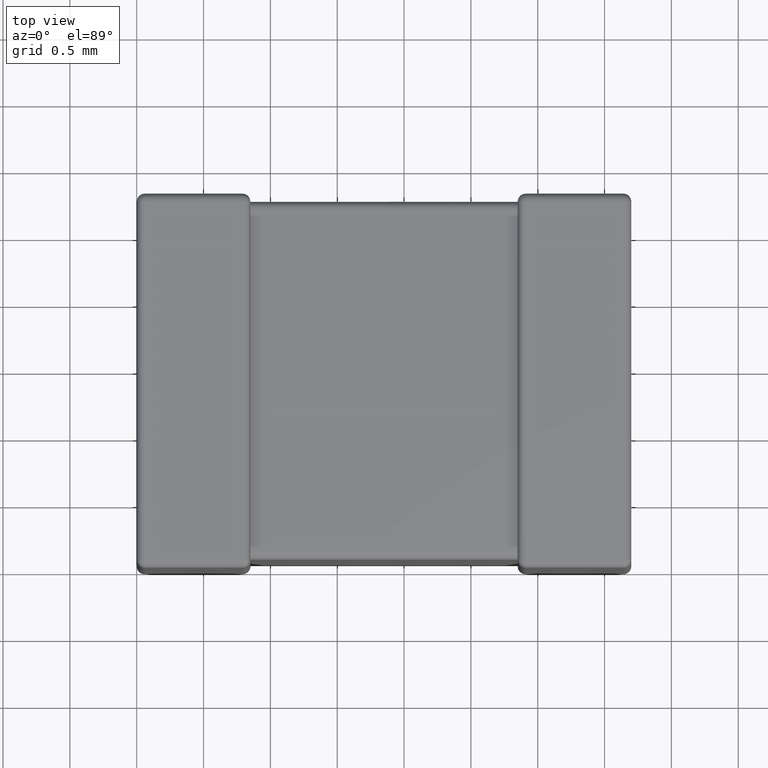
[diagram: clean part render]
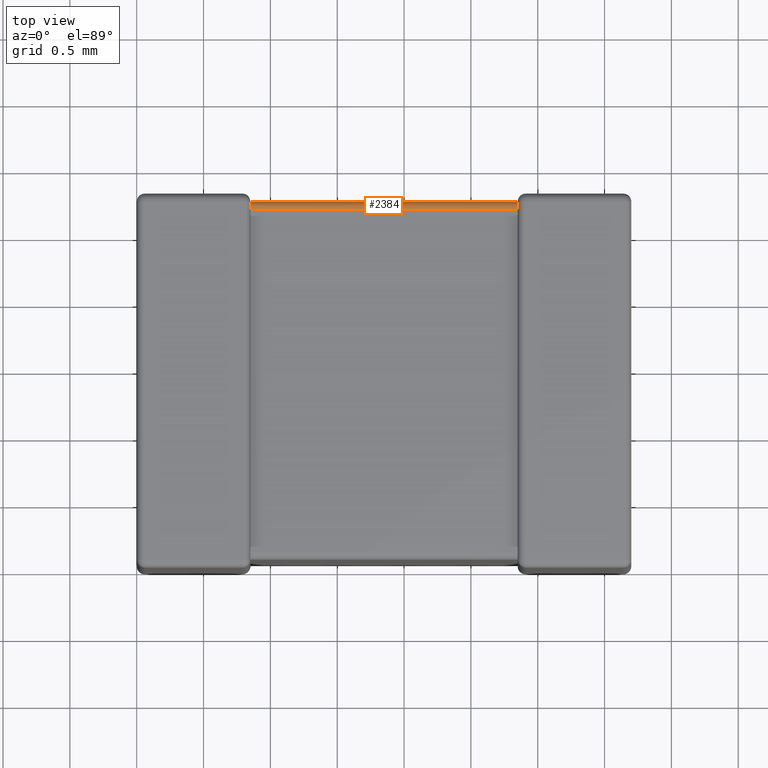
[diagram: same view with one face highlighted and labeled with its STEP entity id]
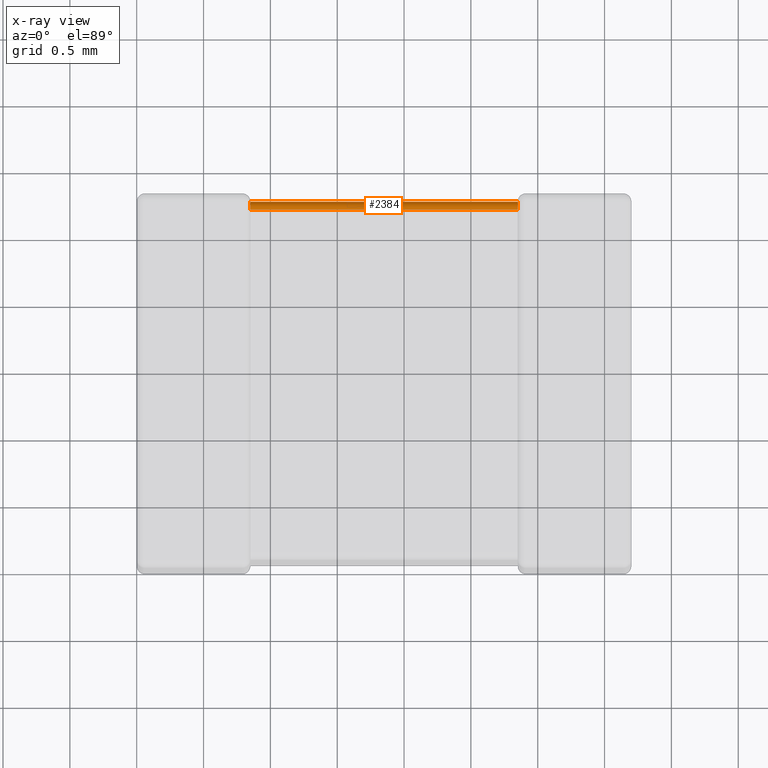
[diagram: x-ray of the same camera — body ghosted, the highlighted face saturated]
A machine part, top view. The second image highlights one B-rep face of the part: STEP entity #2384.
The next image is the same camera in x-ray: the body ghosted, the highlighted face saturated — about 0% of this face is hidden behind the body in this view.
In plain terms, the highlighted cylindrical surface (edge-blend (fillet) strip) has radius 0.0603 mm, axis along (-1, 0, 0).
Its self-contained STEP definition (entity closure, byte-faithful):
#31 = CARTESIAN_POINT ( 'NONE',  ( 0.8500014915948037597, 2.739432080224852850, -0.1143347339007950991 ) ) ;
#42 = CARTESIAN_POINT ( 'NONE',  ( 0.8500000000000000888, 2.679359999999999964, -0.06031999999999999168 ) ) ;
#68 = CARTESIAN_POINT ( 'NONE',  ( 0.8499999999999999778, 2.739679999999999893, -0.1206399999999999834 ) ) ;
#138 = CARTESIAN_POINT ( 'NONE',  ( 2.849999999999999645, 2.679359999999999964, -0.06031999999999999168 ) ) ;
#183 = CARTESIAN_POINT ( 'NONE',  ( 2.850092537798195824, 2.736340060370261451, -0.1008466900140133488 ) ) ;
#219 = VERTEX_POINT ( 'NONE', #4456 ) ;
#245 = B_SPLINE_CURVE_WITH_KNOTS ( 'NONE', 3,
 ( #4131, #1611, #480, #1914, #4458, #3046, #1219, #2637, #2280, #4510 ),
 .UNSPECIFIED., .F., .F.,
 ( 4, 3, 3, 4 ),
 ( 0.000000000000000000, 2.007333754452009811E-05, 4.018812802268484905E-05, 4.726196897772553835E-05 ),
 .UNSPECIFIED. ) ;
#325 = EDGE_LOOP ( 'NONE', ( #703, #3017, #3751, #4155, #2013, #3794 ) ) ;
#480 = CARTESIAN_POINT ( 'NONE',  ( 0.8500292006010126133, 2.692833732949284631, -0.06146469191580231778 ) ) ;
#485 = CARTESIAN_POINT ( 'NONE',  ( 2.849999999999999645, 2.739679999999999893, -0.1206399999999999834 ) ) ;
#491 = CARTESIAN_POINT ( 'NONE',  ( 2.849999999999999645, 2.739679999999999893, -0.1206399999999999834 ) ) ;
#518 = CARTESIAN_POINT ( 'NONE',  ( 2.850676003751899668, 2.712397194144273715, -0.06977744718170159066 ) ) ;
#566 = CARTESIAN_POINT ( 'NONE',  ( 2.849999999999999645, 2.739679999999999893, -0.1139488874851640327 ) ) ;
#703 = ORIENTED_EDGE ( 'NONE', *, *, #3631, .F. ) ;
#756 = CARTESIAN_POINT ( 'NONE',  ( 0.8499834057221581363, 2.737956393001885314, -0.1049956869019970790 ) ) ;
#855 = DIRECTION ( 'NONE',  ( -1.000000000000000000, 0.000000000000000000, -0.000000000000000000 ) ) ;
#933 = CARTESIAN_POINT ( 'NONE',  ( 2.852139638876261873, 2.723663482224630172, -0.07963812014200406797 ) ) ;
#1082 = CARTESIAN_POINT ( 'NONE',  ( 0.8499999999999999778, 2.739679999999999893, -0.1206399999999999834 ) ) ;
#1117 = EDGE_CURVE ( 'NONE', #1140, #3993, #2537, .T. ) ;
#1140 = VERTEX_POINT ( 'NONE', #1229 ) ;
#1141 = CARTESIAN_POINT ( 'NONE',  ( 0.8496394255884716085, 2.733094433729698292, -0.09323355857195797514 ) ) ;
#1190 = CARTESIAN_POINT ( 'NONE',  ( 2.849999999999999645, 2.679359999999999964, -0.06031999999999999168 ) ) ;
#1202 = LINE ( 'NONE', #485, #2980 ) ;
#1206 = CARTESIAN_POINT ( 'NONE',  ( 2.850214406735153361, 2.734142458734350356, -0.09452033661618955418 ) ) ;
#1219 = CARTESIAN_POINT ( 'NONE',  ( 0.8485877111295117015, 2.716737467000159612, -0.07329628488751675774 ) ) ;
#1229 = CARTESIAN_POINT ( 'NONE',  ( 2.849999999999999645, 2.739679999999999893, -0.1206399999999999834 ) ) ;
#1252 = CARTESIAN_POINT ( 'NONE',  ( 2.850506385401005982, 2.730816194173637079, -0.08847155471007216165 ) ) ;
#1278 = CARTESIAN_POINT ( 'NONE',  ( 2.851412288870488254, 2.726703715112483106, -0.08326253299984030798 ) ) ;
#1338 = EDGE_CURVE ( 'NONE', #2216, #1140, #1202, .T. ) ;
#1430 = CARTESIAN_POINT ( 'NONE',  ( 0.8499537780176533719, 2.735956509717161644, -0.09884508726609800289 ) ) ;
#1581 = CARTESIAN_POINT ( 'NONE',  ( 2.850016594277841708, 2.695004313098003035, -0.06204360699811516111 ) ) ;
#1611 = CARTESIAN_POINT ( 'NONE',  ( 0.8500000000000000888, 2.686051112514836081, -0.06031999999999999168 ) ) ;
#1791 = CARTESIAN_POINT ( 'NONE',  ( 0.8473546759055224920, 2.722012681041172666, -0.07798731895882737852 ) ) ;
#1853 = CARTESIAN_POINT ( 'NONE',  ( 2.850004529734188274, 2.688774514713004660, -0.06105922027433158261 ) ) ;
#1875 = CARTESIAN_POINT ( 'NONE',  ( 2.849998508405195974, 2.685665266099205084, -0.06056791977514739550 ) ) ;
#1914 = CARTESIAN_POINT ( 'NONE',  ( 0.8499074622018036873, 2.699153309985986571, -0.06365993962973853781 ) ) ;
#1922 = DIRECTION ( 'NONE',  ( 1.000000000000000000, 0.000000000000000000, -0.000000000000000000 ) ) ;
#1930 = CARTESIAN_POINT ( 'NONE',  ( 2.849970799398986898, 2.738535308084197872, -0.1071662670507152748 ) ) ;
#2013 = ORIENTED_EDGE ( 'NONE', *, *, #1338, .F. ) ;
#2034 = CARTESIAN_POINT ( 'NONE',  ( 0.8500000000000000888, 2.679359999999999964, -0.06031999999999999168 ) ) ;
#2216 = VERTEX_POINT ( 'NONE', #1082 ) ;
#2280 = CARTESIAN_POINT ( 'NONE',  ( 0.8478603611237373050, 2.720361879857996268, -0.07633651777536965000 ) ) ;
#2295 = CARTESIAN_POINT ( 'NONE',  ( 2.851735349689731969, 2.725237134070046974, -0.08140490591499352502 ) ) ;
#2384 = ADVANCED_FACE ( 'NONE', ( #3189 ), #3170, .T. ) ;
#2386 = VERTEX_POINT ( 'NONE', #2034 ) ;
#2468 = CARTESIAN_POINT ( 'NONE',  ( 0.8486944430588806432, 2.726386329161686994, -0.08236096707934172090 ) ) ;
#2537 = B_SPLINE_CURVE_WITH_KNOTS ( 'NONE', 3,
 ( #491, #566, #1930, #183, #1206, #1252, #1278, #2295, #933, #3366 ),
 .UNSPECIFIED., .F., .F.,
 ( 4, 3, 3, 4 ),
 ( 0.000000000000000000, 2.007333754452009472E-05, 4.018812802268501168E-05, 4.726196897772585683E-05 ),
 .UNSPECIFIED. ) ;
#2614 = LINE ( 'NONE', #42, #3108 ) ;
#2625 = CARTESIAN_POINT ( 'NONE',  ( 2.850360574411527903, 2.706766441428042125, -0.06690556627030211367 ) ) ;
#2637 = CARTESIAN_POINT ( 'NONE',  ( 0.8482646503102677649, 2.718595094085006547, -0.07476286592995283475 ) ) ;
#2935 = CARTESIAN_POINT ( 'NONE',  ( 2.850046221982346140, 2.701154912733902069, -0.06404349028283841394 ) ) ;
#2980 = VECTOR ( 'NONE', #1922, 1000.000000000000000 ) ;
#3017 = ORIENTED_EDGE ( 'NONE', *, *, #3515, .F. ) ;
#3046 = CARTESIAN_POINT ( 'NONE',  ( 0.8494936145989937515, 2.711528445289927980, -0.06918380582636321496 ) ) ;
#3108 = VECTOR ( 'NONE', #855, 1000.000000000000000 ) ;
#3170 = CYLINDRICAL_SURFACE ( 'NONE', #4279, 0.06031999999999999862 ) ;
#3182 = EDGE_CURVE ( 'NONE', #3993, #4343, #3785, .T. ) ;
#3189 = FACE_OUTER_BOUND ( 'NONE', #325, .T. ) ;
#3366 = CARTESIAN_POINT ( 'NONE',  ( 2.852645324094476909, 2.722012681041172666, -0.07798731895882743403 ) ) ;
#3515 = EDGE_CURVE ( 'NONE', #4343, #2386, #2614, .T. ) ;
#3550 = DIRECTION ( 'NONE',  ( -1.000000000000000000, 0.000000000000000000, 0.000000000000000000 ) ) ;
#3569 = CARTESIAN_POINT ( 'NONE',  ( 0.8499954702658116812, 2.738940779725668406, -0.1112254852869956068 ) ) ;
#3631 = EDGE_CURVE ( 'NONE', #2386, #219, #245, .T. ) ;
#3735 = CARTESIAN_POINT ( 'NONE',  ( 2.849999999999903277, 2.682507830900687562, -0.06031999999999463485 ) ) ;
#3751 = ORIENTED_EDGE ( 'NONE', *, *, #3182, .F. ) ;
#3785 = B_SPLINE_CURVE_WITH_KNOTS ( 'NONE', 3,
 ( #4377, #4095, #518, #2625, #2935, #1581, #1853, #1875, #3735, #1190 ),
 .UNSPECIFIED., .F., .F.,
 ( 4, 3, 3, 4 ),
 ( 0.000000000000000000, 1.898613036151297387E-05, 3.787211996365401362E-05, 4.720870273682603222E-05 ),
 .UNSPECIFIED. ) ;
#3794 = ORIENTED_EDGE ( 'NONE', *, *, #3808, .F. ) ;
#3808 = EDGE_CURVE ( 'NONE', #219, #2216, #4471, .T. ) ;
#3837 = CARTESIAN_POINT ( 'NONE',  ( 2.852645324094476909, 2.722012681041172666, -0.07798731895882743403 ) ) ;
#3929 = DIRECTION ( 'NONE',  ( 0.000000000000000000, 0.000000000000000000, 1.000000000000000000 ) ) ;
#3993 = VERTEX_POINT ( 'NONE', #3837 ) ;
#4022 = CARTESIAN_POINT ( 'NONE',  ( 0.8500000000000961231, 2.739680000000005666, -0.1174921690993126211 ) ) ;
#4095 = CARTESIAN_POINT ( 'NONE',  ( 2.851305556941118979, 2.717639032920658337, -0.07361367083831323044 ) ) ;
#4131 = CARTESIAN_POINT ( 'NONE',  ( 0.8500000000000000888, 2.679359999999999964, -0.06031999999999999168 ) ) ;
#4155 = ORIENTED_EDGE ( 'NONE', *, *, #1117, .F. ) ;
#4279 = AXIS2_PLACEMENT_3D ( 'NONE', #4648, #3550, #3929 ) ;
#4343 = VERTEX_POINT ( 'NONE', #138 ) ;
#4377 = CARTESIAN_POINT ( 'NONE',  ( 2.852645324094476909, 2.722012681041172666, -0.07798731895882743403 ) ) ;
#4381 = CARTESIAN_POINT ( 'NONE',  ( 0.8493239962480998440, 2.730222552818298620, -0.08760280585572662038 ) ) ;
#4456 = CARTESIAN_POINT ( 'NONE',  ( 0.8473546759055224920, 2.722012681041172666, -0.07798731895882737852 ) ) ;
#4458 = CARTESIAN_POINT ( 'NONE',  ( 0.8497855932648465949, 2.705479663383810518, -0.06585754126565010469 ) ) ;
#4471 = B_SPLINE_CURVE_WITH_KNOTS ( 'NONE', 3,
 ( #1791, #2468, #4381, #1141, #1430, #756, #3569, #31, #4022, #68 ),
 .UNSPECIFIED., .F., .F.,
 ( 4, 3, 3, 4 ),
 ( 0.000000000000000000, 1.898613036151324831E-05, 3.787211996365370868E-05, 4.720870273682615419E-05 ),
 .UNSPECIFIED. ) ;
#4510 = CARTESIAN_POINT ( 'NONE',  ( 0.8473546759055224920, 2.722012681041172666, -0.07798731895882737852 ) ) ;
#4648 = CARTESIAN_POINT ( 'NONE',  ( 0.8499999999999999778, 2.679359999999999964, -0.1206399999999999834 ) ) ;